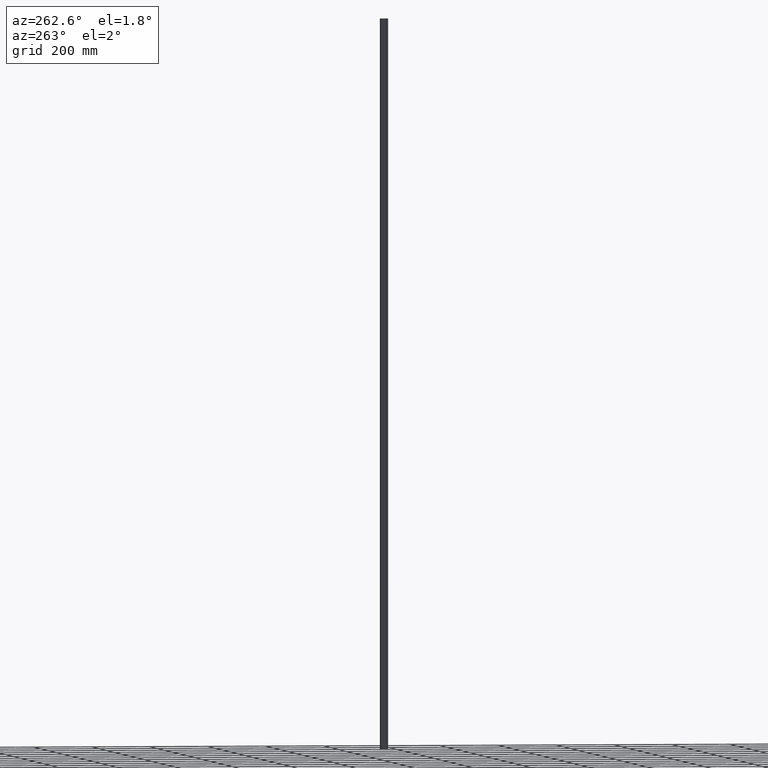
[diagram: clean part render]
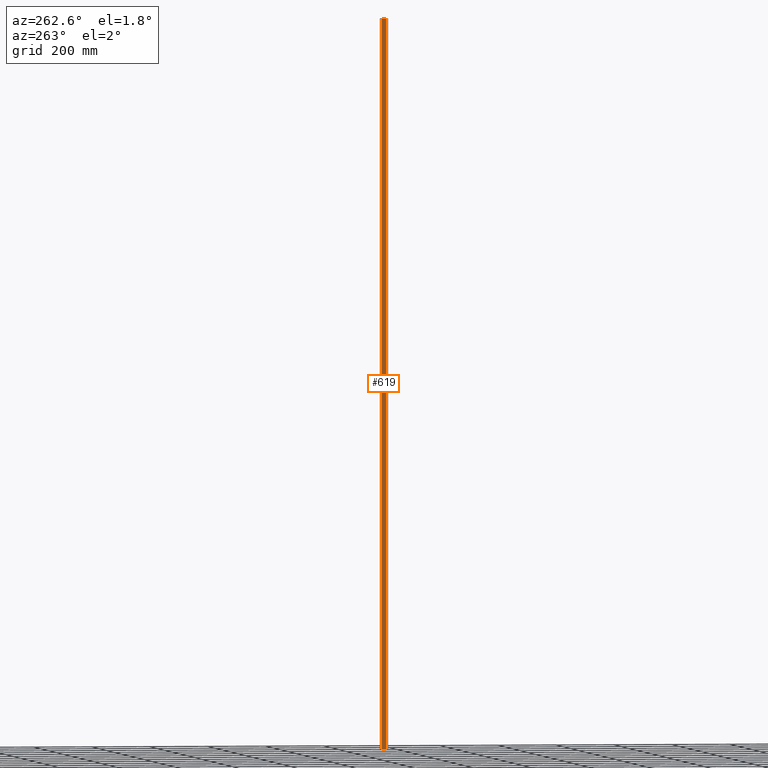
[diagram: same view with one face highlighted and labeled with its STEP entity id]
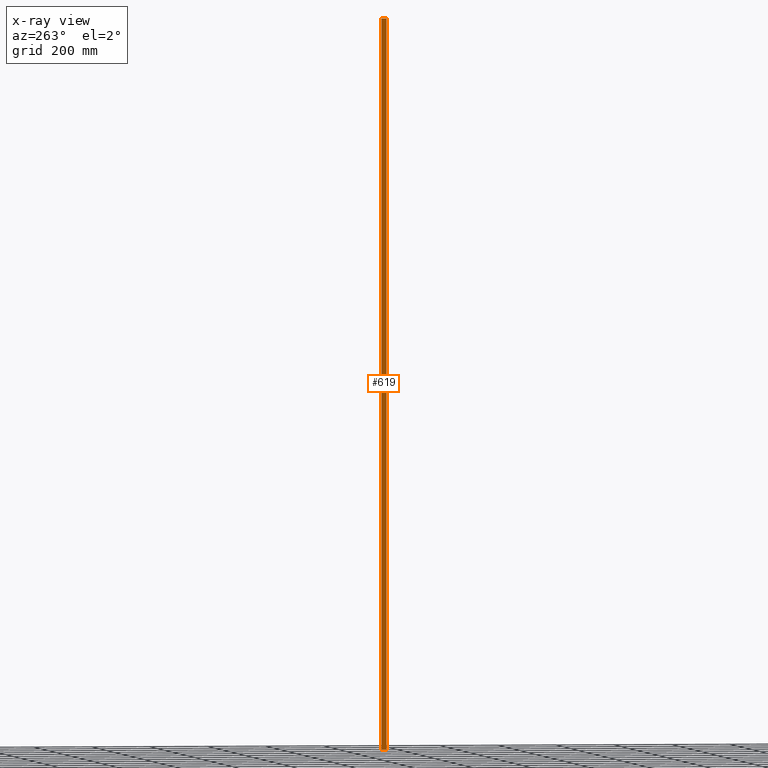
[diagram: x-ray of the same camera — body ghosted, the highlighted face saturated]
A machine part, auxiliary view. The second image highlights one B-rep face of the part: STEP entity #619.
The next image is the same camera in x-ray: the body ghosted, the highlighted face saturated — about 0% of this face is hidden behind the body in this view.
In plain terms, the highlighted planar face has unit normal (1, 0, -0).
Its self-contained STEP definition (entity closure, byte-faithful):
#41 = LINE ( 'NONE', #546, #199 ) ;
#72 = DIRECTION ( 'NONE',  ( -0.0000000000000000000, 0.0000000000000000000, -1.000000000000000000 ) ) ;
#76 = DIRECTION ( 'NONE',  ( 1.000000000000000000, 0.0000000000000000000, -0.0000000000000000000 ) ) ;
#77 = CARTESIAN_POINT ( 'NONE',  ( -1.750000000000001300, -8.699999999999995700, 1250.000000000000000 ) ) ;
#78 = CARTESIAN_POINT ( 'NONE',  ( -1.750000000000000200, 8.699999999999995700, 1250.000000000000000 ) ) ;
#89 = AXIS2_PLACEMENT_3D ( 'NONE', #78, #76, #72 ) ;
#111 = FACE_OUTER_BOUND ( 'NONE', #706, .T. ) ;
#117 = PLANE ( 'NONE',  #89 ) ;
#121 = CARTESIAN_POINT ( 'NONE',  ( -1.750000000000000200, 8.699999999999995700, 1250.000000000000000 ) ) ;
#199 = VECTOR ( 'NONE', #538, 1000.000000000000000 ) ;
#222 = VERTEX_POINT ( 'NONE', #763 ) ;
#229 = VECTOR ( 'NONE', #600, 1000.000000000000000 ) ;
#265 = ORIENTED_EDGE ( 'NONE', *, *, #336, .T. ) ;
#309 = EDGE_CURVE ( 'NONE', #598, #222, #833, .T. ) ;
#336 = EDGE_CURVE ( 'NONE', #222, #456, #41, .T. ) ;
#347 = CARTESIAN_POINT ( 'NONE',  ( -1.750000000000001300, -8.699999999999995700, -1250.000000000000000 ) ) ;
#361 = EDGE_CURVE ( 'NONE', #797, #456, #485, .T. ) ;
#371 = VECTOR ( 'NONE', #517, 1000.000000000000000 ) ;
#374 = EDGE_CURVE ( 'NONE', #598, #797, #647, .T. ) ;
#456 = VERTEX_POINT ( 'NONE', #347 ) ;
#485 = LINE ( 'NONE', #525, #371 ) ;
#490 = DIRECTION ( 'NONE',  ( 0.0000000000000000000, -1.000000000000000000, 0.0000000000000000000 ) ) ;
#494 = CARTESIAN_POINT ( 'NONE',  ( -1.750000000000000200, 8.699999999999995700, 1250.000000000000000 ) ) ;
#513 = ORIENTED_EDGE ( 'NONE', *, *, #374, .F. ) ;
#517 = DIRECTION ( 'NONE',  ( -0.0000000000000000000, -0.0000000000000000000, -1.000000000000000000 ) ) ;
#525 = CARTESIAN_POINT ( 'NONE',  ( -1.750000000000001300, -8.699999999999995700, 1250.000000000000000 ) ) ;
#526 = ORIENTED_EDGE ( 'NONE', *, *, #309, .T. ) ;
#538 = DIRECTION ( 'NONE',  ( 0.0000000000000000000, -1.000000000000000000, 0.0000000000000000000 ) ) ;
#546 = CARTESIAN_POINT ( 'NONE',  ( -1.750000000000000200, 8.699999999999995700, -1250.000000000000000 ) ) ;
#596 = ORIENTED_EDGE ( 'NONE', *, *, #361, .F. ) ;
#598 = VERTEX_POINT ( 'NONE', #121 ) ;
#600 = DIRECTION ( 'NONE',  ( -0.0000000000000000000, -0.0000000000000000000, -1.000000000000000000 ) ) ;
#615 = CARTESIAN_POINT ( 'NONE',  ( -1.750000000000000200, 8.699999999999995700, 1250.000000000000000 ) ) ;
#619 = ADVANCED_FACE ( 'NONE', ( #111 ), #117, .F. ) ;
#647 = LINE ( 'NONE', #494, #884 ) ;
#706 = EDGE_LOOP ( 'NONE', ( #265, #596, #513, #526 ) ) ;
#763 = CARTESIAN_POINT ( 'NONE',  ( -1.750000000000000200, 8.699999999999995700, -1250.000000000000000 ) ) ;
#797 = VERTEX_POINT ( 'NONE', #77 ) ;
#833 = LINE ( 'NONE', #615, #229 ) ;
#884 = VECTOR ( 'NONE', #490, 1000.000000000000000 ) ;